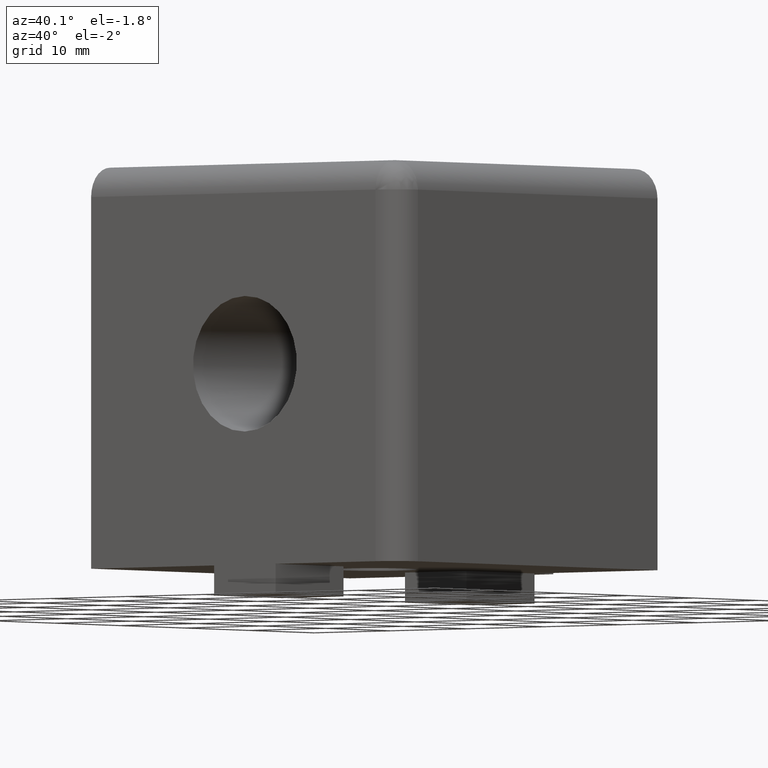
[diagram: clean part render]
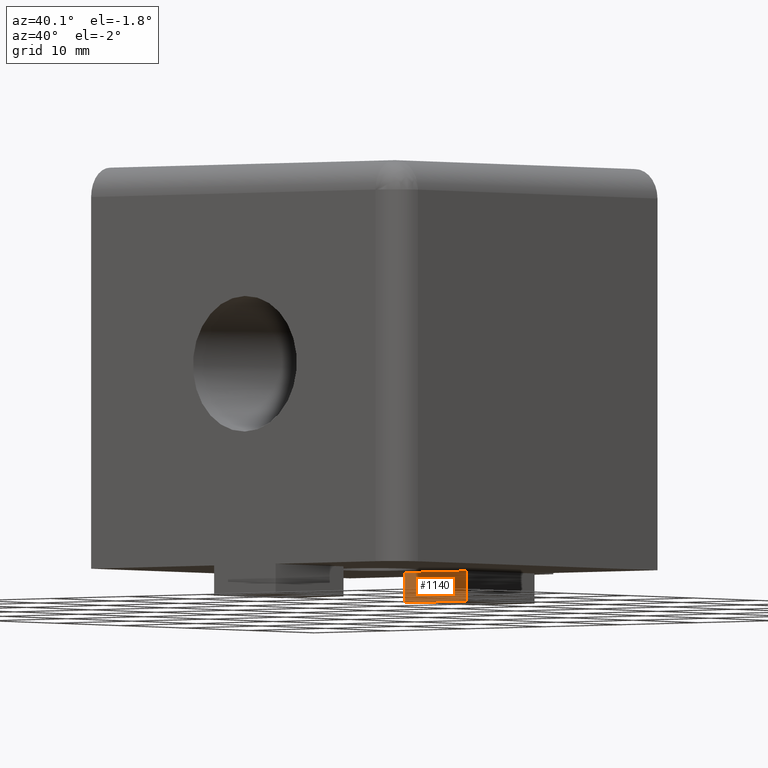
[diagram: same view with one face highlighted and labeled with its STEP entity id]
A machine part, auxiliary view. The second image highlights one B-rep face of the part: STEP entity #1140.
In plain terms, the highlighted planar face has unit normal (0, 1, 0).
Its self-contained STEP definition (entity closure, byte-faithful):
#414=CARTESIAN_POINT('',(-4.000000000000007,-10.500000000000005,-20.0));
#415=VERTEX_POINT('',#414);
#422=CARTESIAN_POINT('',(4.0,-10.500000000000005,-20.0));
#423=VERTEX_POINT('',#422);
#424=CARTESIAN_POINT('',(4.0,-10.500000000000005,-20.0));
#425=DIRECTION('',(-1.0,0.0,0.0));
#426=VECTOR('',#425,8.000000000000007);
#427=LINE('',#424,#426);
#428=EDGE_CURVE('',#423,#415,#427,.T.);
#1083=CARTESIAN_POINT('',(-4.000000000000007,-10.500000000000005,-23.0));
#1084=VERTEX_POINT('',#1083);
#1091=CARTESIAN_POINT('',(-4.000000000000007,-10.500000000000005,-23.0));
#1092=DIRECTION('',(0.0,0.0,1.0));
#1093=VECTOR('',#1092,3.0);
#1094=LINE('',#1091,#1093);
#1095=EDGE_CURVE('',#1084,#415,#1094,.T.);
#1106=CARTESIAN_POINT('',(4.0,-10.500000000000005,-23.0));
#1107=VERTEX_POINT('',#1106);
#1108=CARTESIAN_POINT('',(4.0,-10.500000000000005,-23.0));
#1109=DIRECTION('',(0.0,0.0,1.0));
#1110=VECTOR('',#1109,3.0);
#1111=LINE('',#1108,#1110);
#1112=EDGE_CURVE('',#1107,#423,#1111,.T.);
#1124=CARTESIAN_POINT('',(-4.400000000000006,-10.500000000000005,-23.149999999999999));
#1125=DIRECTION('',(0.0,1.0,0.0));
#1126=DIRECTION('',(0.0,0.0,1.0));
#1127=AXIS2_PLACEMENT_3D('',#1124,#1125,#1126);
#1128=PLANE('',#1127);
#1129=ORIENTED_EDGE('',*,*,#428,.T.);
#1130=ORIENTED_EDGE('',*,*,#1095,.F.);
#1131=CARTESIAN_POINT('',(4.0,-10.500000000000005,-23.0));
#1132=DIRECTION('',(-1.0,0.0,0.0));
#1133=VECTOR('',#1132,8.000000000000007);
#1134=LINE('',#1131,#1133);
#1135=EDGE_CURVE('',#1107,#1084,#1134,.T.);
#1136=ORIENTED_EDGE('',*,*,#1135,.F.);
#1137=ORIENTED_EDGE('',*,*,#1112,.T.);
#1138=EDGE_LOOP('',(#1129,#1130,#1136,#1137));
#1139=FACE_OUTER_BOUND('',#1138,.T.);
#1140=ADVANCED_FACE('',(#1139),#1128,.F.);